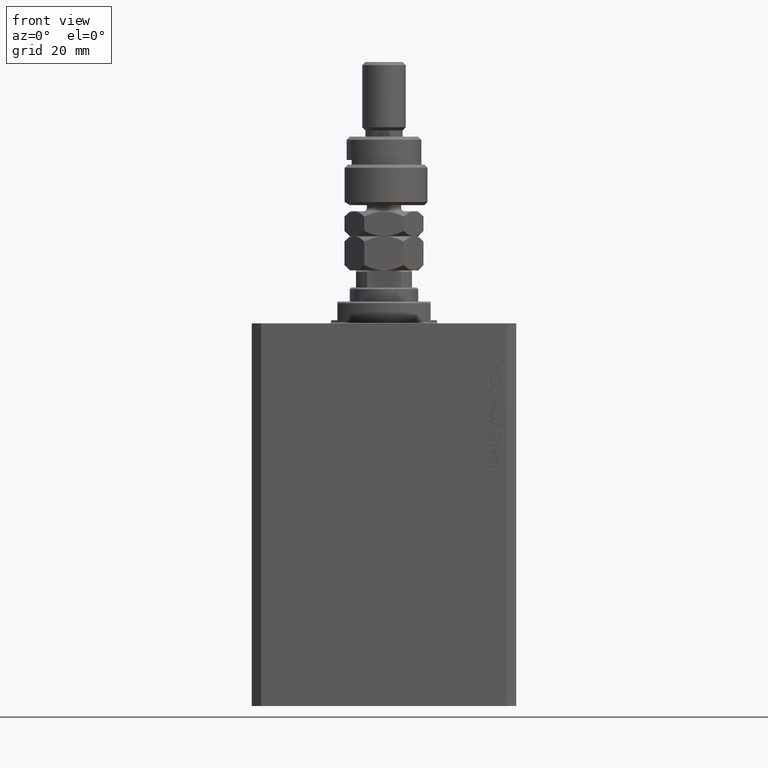
[diagram: clean part render]
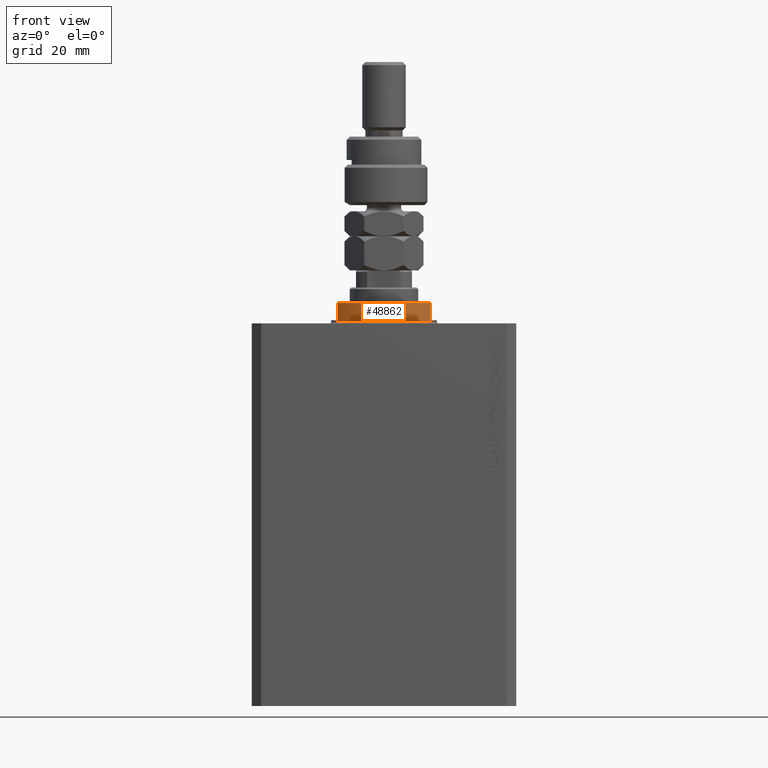
[diagram: same view with one face highlighted and labeled with its STEP entity id]
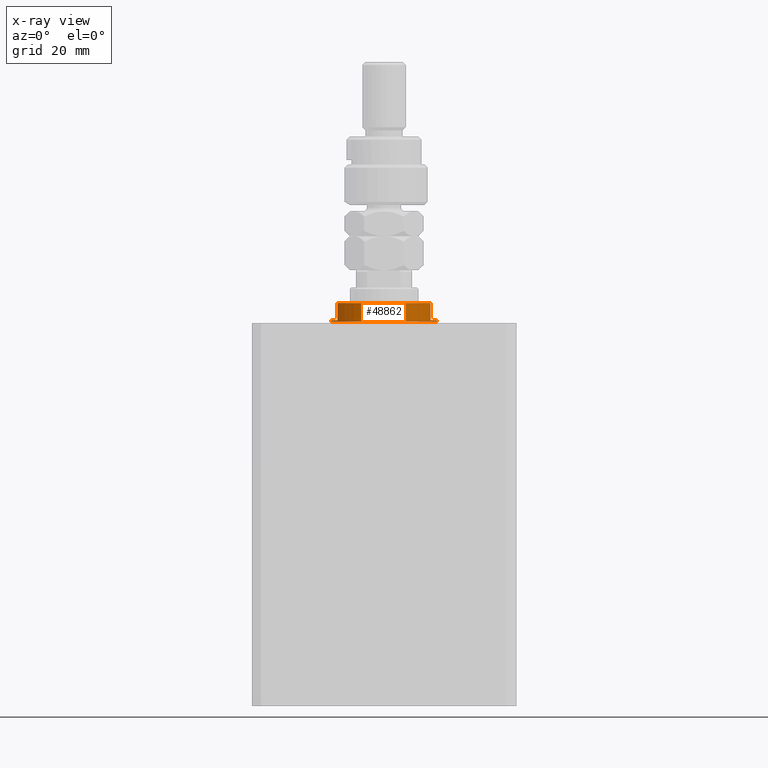
[diagram: x-ray of the same camera — body ghosted, the highlighted face saturated]
A machine part, front view. The second image highlights one B-rep face of the part: STEP entity #48862.
The next image is the same camera in x-ray: the body ghosted, the highlighted face saturated — about 0% of this face is hidden behind the body in this view.
In plain terms, the highlighted cylindrical surface (partial cylindrical patch) has radius 17 mm, axis along (0, 0, -1).
Its self-contained STEP definition (entity closure, byte-faithful):
#1539 = CIRCLE ( 'NONE', #46932, 17.00000000000000000 ) ;
#2440 = CARTESIAN_POINT ( 'NONE',  ( 0.000000000000000000, 0.000000000000000000, -1.000000000000000000 ) ) ;
#3346 = EDGE_CURVE ( 'NONE', #41094, #9382, #28583, .T. ) ;
#4194 = AXIS2_PLACEMENT_3D ( 'NONE', #21010, #25067, #36476 ) ;
#4273 = CARTESIAN_POINT ( 'NONE',  ( 0.000000000000000000, 0.000000000000000000, -1.000000000000000000 ) ) ;
#4299 = CARTESIAN_POINT ( 'NONE',  ( 17.00000000000000000, 0.000000000000000000, -0.4999999999999995559 ) ) ;
#7766 = LINE ( 'NONE', #31352, #38445 ) ;
#7776 = CARTESIAN_POINT ( 'NONE',  ( -14.99999999999999645, -8.000000000000003553, -1.000000000000000000 ) ) ;
#8935 = CARTESIAN_POINT ( 'NONE',  ( -17.00000000000000000, 2.081899558550500280E-15, -0.4999999999999995559 ) ) ;
#9382 = VERTEX_POINT ( 'NONE', #29557 ) ;
#9574 = FACE_OUTER_BOUND ( 'NONE', #47456, .T. ) ;
#9636 = VECTOR ( 'NONE', #41392, 1000.000000000000000 ) ;
#9807 = ORIENTED_EDGE ( 'NONE', *, *, #16775, .T. ) ;
#11545 = EDGE_CURVE ( 'NONE', #18894, #13364, #1539, .T. ) ;
#11557 = AXIS2_PLACEMENT_3D ( 'NONE', #2440, #34140, #41998 ) ;
#12036 = DIRECTION ( 'NONE',  ( -1.000000000000000000, 0.000000000000000000, 0.000000000000000000 ) ) ;
#12187 = EDGE_CURVE ( 'NONE', #9382, #12986, #33776, .T. ) ;
#12642 = EDGE_CURVE ( 'NONE', #44057, #48939, #48597, .T. ) ;
#12986 = VERTEX_POINT ( 'NONE', #8935 ) ;
#13364 = VERTEX_POINT ( 'NONE', #17808 ) ;
#14006 = VECTOR ( 'NONE', #26648, 1000.000000000000000 ) ;
#15666 = DIRECTION ( 'NONE',  ( 0.000000000000000000, 0.000000000000000000, -1.000000000000000000 ) ) ;
#15908 = LINE ( 'NONE', #35203, #43764 ) ;
#16346 = CARTESIAN_POINT ( 'NONE',  ( 0.000000000000000000, 0.000000000000000000, -0.4999999999999995559 ) ) ;
#16775 = EDGE_CURVE ( 'NONE', #41094, #18894, #15908, .T. ) ;
#17808 = CARTESIAN_POINT ( 'NONE',  ( 15.00000000000000000, -8.000000000000001776, -6.500000000000013323 ) ) ;
#18276 = LINE ( 'NONE', #29954, #14006 ) ;
#18894 = VERTEX_POINT ( 'NONE', #41066 ) ;
#19848 = ORIENTED_EDGE ( 'NONE', *, *, #12187, .F. ) ;
#21010 = CARTESIAN_POINT ( 'NONE',  ( 0.000000000000000000, 0.000000000000000000, -7.000000000000000000 ) ) ;
#21023 = AXIS2_PLACEMENT_3D ( 'NONE', #4273, #15666, #35208 ) ;
#22102 = CARTESIAN_POINT ( 'NONE',  ( -17.00000000000000000, 2.081899558550500280E-15, -7.000000000000000000 ) ) ;
#23919 = EDGE_CURVE ( 'NONE', #44057, #48730, #18276, .T. ) ;
#23986 = AXIS2_PLACEMENT_3D ( 'NONE', #16346, #42762, #27535 ) ;
#25067 = DIRECTION ( 'NONE',  ( -0.000000000000000000, -0.000000000000000000, 1.000000000000000000 ) ) ;
#25601 = ORIENTED_EDGE ( 'NONE', *, *, #34093, .T. ) ;
#26328 = EDGE_CURVE ( 'NONE', #48939, #13364, #7766, .T. ) ;
#26648 = DIRECTION ( 'NONE',  ( -0.000000000000000000, -0.000000000000000000, 1.000000000000000000 ) ) ;
#26785 = DIRECTION ( 'NONE',  ( 0.000000000000000000, 0.000000000000000000, 1.000000000000000000 ) ) ;
#27535 = DIRECTION ( 'NONE',  ( 1.000000000000000000, 0.000000000000000000, 0.000000000000000000 ) ) ;
#28583 = CIRCLE ( 'NONE', #11557, 17.00000000000000000 ) ;
#29557 = CARTESIAN_POINT ( 'NONE',  ( -17.00000000000000000, 2.081899558550500280E-15, -1.000000000000000000 ) ) ;
#29954 = CARTESIAN_POINT ( 'NONE',  ( 17.00000000000000000, 0.000000000000000000, -7.000000000000000000 ) ) ;
#31155 = DIRECTION ( 'NONE',  ( 0.000000000000000000, 0.000000000000000000, -1.000000000000000000 ) ) ;
#31352 = CARTESIAN_POINT ( 'NONE',  ( 15.00000000000000000, -8.000000000000001776, -7.000000000000000000 ) ) ;
#31557 = ORIENTED_EDGE ( 'NONE', *, *, #26328, .F. ) ;
#33776 = LINE ( 'NONE', #22102, #9636 ) ;
#34093 = EDGE_CURVE ( 'NONE', #48730, #12986, #41005, .T. ) ;
#34140 = DIRECTION ( 'NONE',  ( 0.000000000000000000, 0.000000000000000000, -1.000000000000000000 ) ) ;
#34526 = ORIENTED_EDGE ( 'NONE', *, *, #11545, .T. ) ;
#34857 = ORIENTED_EDGE ( 'NONE', *, *, #23919, .T. ) ;
#35153 = DIRECTION ( 'NONE',  ( 0.000000000000000000, 0.000000000000000000, -1.000000000000000000 ) ) ;
#35203 = CARTESIAN_POINT ( 'NONE',  ( -15.00000000000000000, -8.000000000000001776, -7.000000000000000000 ) ) ;
#35208 = DIRECTION ( 'NONE',  ( -1.000000000000000000, 0.000000000000000000, 0.000000000000000000 ) ) ;
#36476 = DIRECTION ( 'NONE',  ( 1.000000000000000000, 0.000000000000000000, 0.000000000000000000 ) ) ;
#38445 = VECTOR ( 'NONE', #35153, 1000.000000000000000 ) ;
#39474 = ORIENTED_EDGE ( 'NONE', *, *, #12642, .F. ) ;
#41005 = CIRCLE ( 'NONE', #23986, 17.00000000000000000 ) ;
#41066 = CARTESIAN_POINT ( 'NONE',  ( -15.00000000000000000, -8.000000000000001776, -6.500000000000014211 ) ) ;
#41094 = VERTEX_POINT ( 'NONE', #7776 ) ;
#41392 = DIRECTION ( 'NONE',  ( -0.000000000000000000, -0.000000000000000000, 1.000000000000000000 ) ) ;
#41985 = CARTESIAN_POINT ( 'NONE',  ( 14.99999999999999645, -8.000000000000003553, -1.000000000000000000 ) ) ;
#41998 = DIRECTION ( 'NONE',  ( -1.000000000000000000, 0.000000000000000000, 0.000000000000000000 ) ) ;
#42757 = CARTESIAN_POINT ( 'NONE',  ( 0.000000000000000000, 0.000000000000000000, -6.500000000000013323 ) ) ;
#42762 = DIRECTION ( 'NONE',  ( -0.000000000000000000, -0.000000000000000000, -1.000000000000000000 ) ) ;
#43764 = VECTOR ( 'NONE', #31155, 1000.000000000000000 ) ;
#43919 = ORIENTED_EDGE ( 'NONE', *, *, #3346, .F. ) ;
#44057 = VERTEX_POINT ( 'NONE', #48735 ) ;
#46932 = AXIS2_PLACEMENT_3D ( 'NONE', #42757, #26785, #12036 ) ;
#47456 = EDGE_LOOP ( 'NONE', ( #19848, #43919, #9807, #34526, #31557, #39474, #34857, #25601 ) ) ;
#47661 = CYLINDRICAL_SURFACE ( 'NONE', #4194, 17.00000000000000000 ) ;
#48597 = CIRCLE ( 'NONE', #21023, 17.00000000000000000 ) ;
#48730 = VERTEX_POINT ( 'NONE', #4299 ) ;
#48735 = CARTESIAN_POINT ( 'NONE',  ( 17.00000000000000000, 0.000000000000000000, -1.000000000000000000 ) ) ;
#48862 = ADVANCED_FACE ( 'NONE', ( #9574 ), #47661, .T. ) ;
#48939 = VERTEX_POINT ( 'NONE', #41985 ) ;